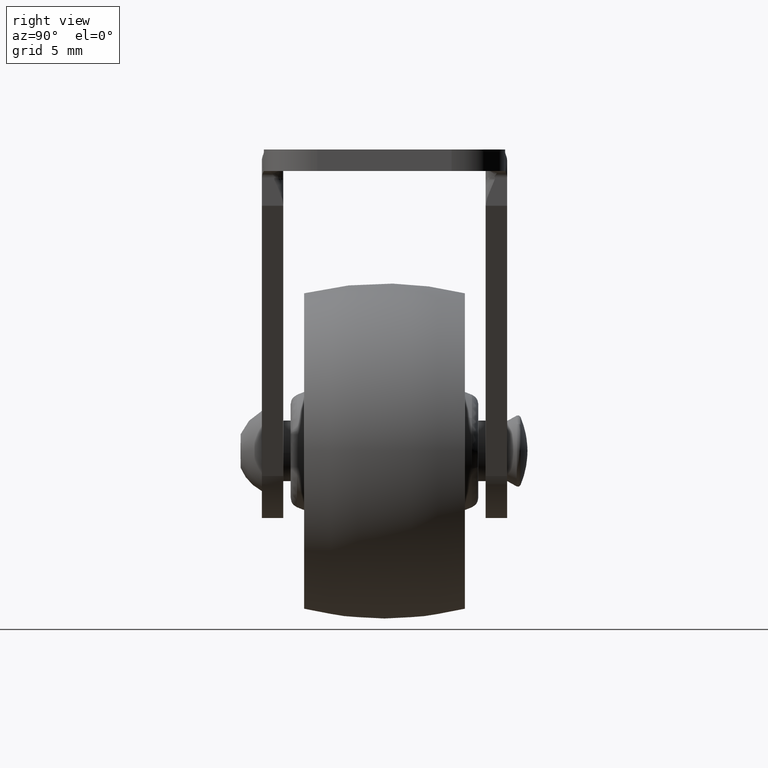
[diagram: clean part render]
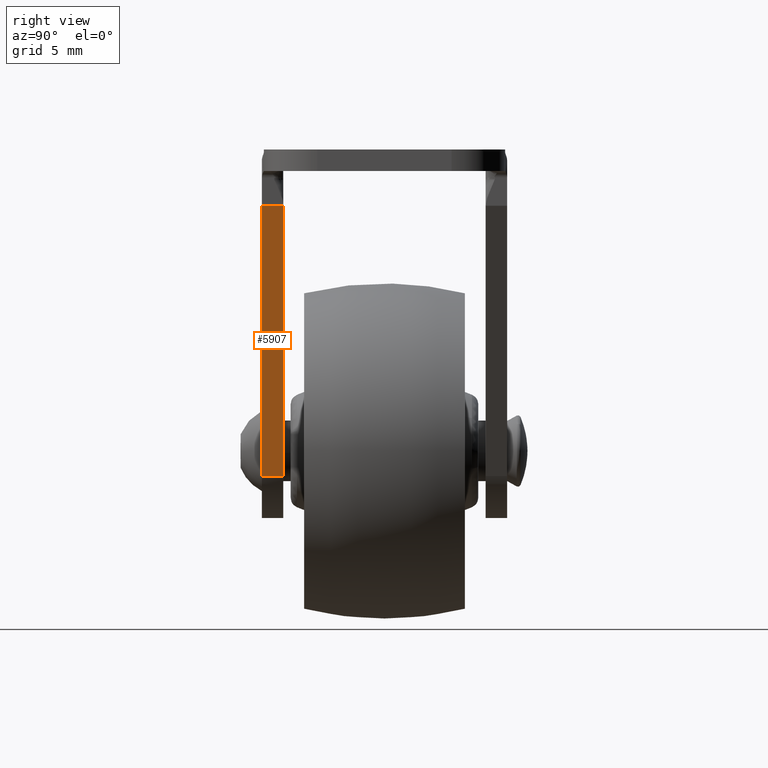
[diagram: same view with one face highlighted and labeled with its STEP entity id]
A machine part, right view. The second image highlights one B-rep face of the part: STEP entity #5907.
In plain terms, the highlighted face is a freeform B-spline surface patch.
Its self-contained STEP definition (entity closure, byte-faithful):
#3488=CARTESIAN_POINT('',(12.750000000000000,-7.550002999999999,18.300030347964199));
#3489=VERTEX_POINT('',#3488);
#5872=CARTESIAN_POINT('',(13.155153822444820,-9.229921445584258,19.307315104204129));
#5873=CARTESIAN_POINT('',(4.233654814956777,-9.229921445584258,-2.873124657724548));
#5874=CARTESIAN_POINT('',(13.155153822444820,-7.470083153872778,19.307315104204129));
#5875=CARTESIAN_POINT('',(4.233654814956777,-7.470083153872778,-2.873124657724548));
#5876=B_SPLINE_SURFACE_WITH_KNOTS('',1,1,((#5872,#5874),(#5873,#5875)),.UNSPECIFIED.,.F.,.F.,.U.,(2,2),(2,2),(0.0,23.907426724203440),(0.041708596076071,0.958291612540185),.UNSPECIFIED.);
#5877=CARTESIAN_POINT('',(4.638817896110660,-7.550002999999999,-1.865842578226655));
#5878=VERTEX_POINT('',#5877);
#5879=CARTESIAN_POINT('',(12.750000000000000,-7.550002999999999,18.300030347964199));
#5880=CARTESIAN_POINT('',(4.638817896110660,-7.550002999999999,-1.865842578226655));
#5881=QUASI_UNIFORM_CURVE('',1,(#5879,#5880),.UNSPECIFIED.,.F.,.U.);
#5882=EDGE_CURVE('',#3489,#5878,#5881,.T.);
#5883=ORIENTED_EDGE('',*,*,#5882,.F.);
#5884=CARTESIAN_POINT('',(12.750000000000000,-9.150002000000001,18.300030347964199));
#5885=VERTEX_POINT('',#5884);
#5886=CARTESIAN_POINT('',(12.750000000000000,-7.550002999999999,18.300030347964199));
#5887=CARTESIAN_POINT('',(12.750000000000000,-9.150002000000001,18.300030347964199));
#5888=QUASI_UNIFORM_CURVE('',1,(#5886,#5887),.UNSPECIFIED.,.F.,.U.);
#5889=EDGE_CURVE('',#3489,#5885,#5888,.T.);
#5890=ORIENTED_EDGE('',*,*,#5889,.T.);
#5891=CARTESIAN_POINT('',(4.638809000000090,-9.150002000000001,-1.865839000000000));
#5892=VERTEX_POINT('',#5891);
#5893=CARTESIAN_POINT('',(4.638809000000090,-9.150002000000001,-1.865839000000000));
#5894=CARTESIAN_POINT('',(12.750000000000000,-9.150002000000001,18.300030347964199));
#5895=QUASI_UNIFORM_CURVE('',1,(#5893,#5894),.UNSPECIFIED.,.F.,.U.);
#5896=EDGE_CURVE('',#5892,#5885,#5895,.T.);
#5897=ORIENTED_EDGE('',*,*,#5896,.F.);
#5898=CARTESIAN_POINT('',(4.638817896110660,-7.550002999999999,-1.865842578226655));
#5899=CARTESIAN_POINT('',(4.638814930740470,-8.083335999999999,-1.865841385484437));
#5900=CARTESIAN_POINT('',(4.638811965370280,-8.616669000000000,-1.865840192742218));
#5901=CARTESIAN_POINT('',(4.638809000000090,-9.150002000000001,-1.865839000000000));
#5902=B_SPLINE_CURVE_WITH_KNOTS('',3,(#5898,#5899,#5900,#5901),.UNSPECIFIED.,.F.,.U.,(4,4),(0.0,0.001599999000000),.UNSPECIFIED.);
#5903=EDGE_CURVE('',#5878,#5892,#5902,.T.);
#5904=ORIENTED_EDGE('',*,*,#5903,.F.);
#5905=EDGE_LOOP('',(#5883,#5890,#5897,#5904));
#5906=FACE_OUTER_BOUND('',#5905,.T.);
#5907=ADVANCED_FACE('',(#5906),#5876,.T.);